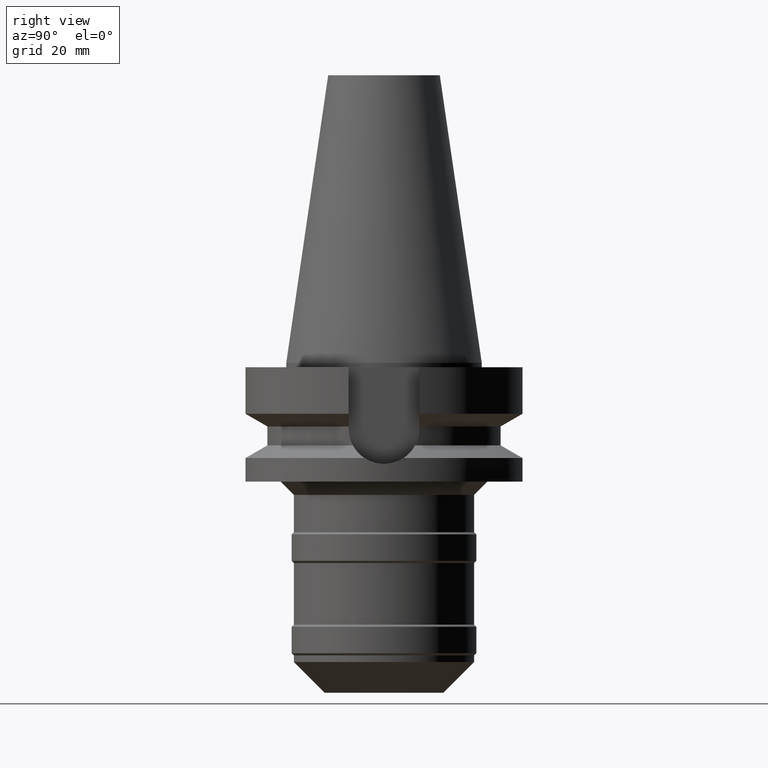
[diagram: clean part render]
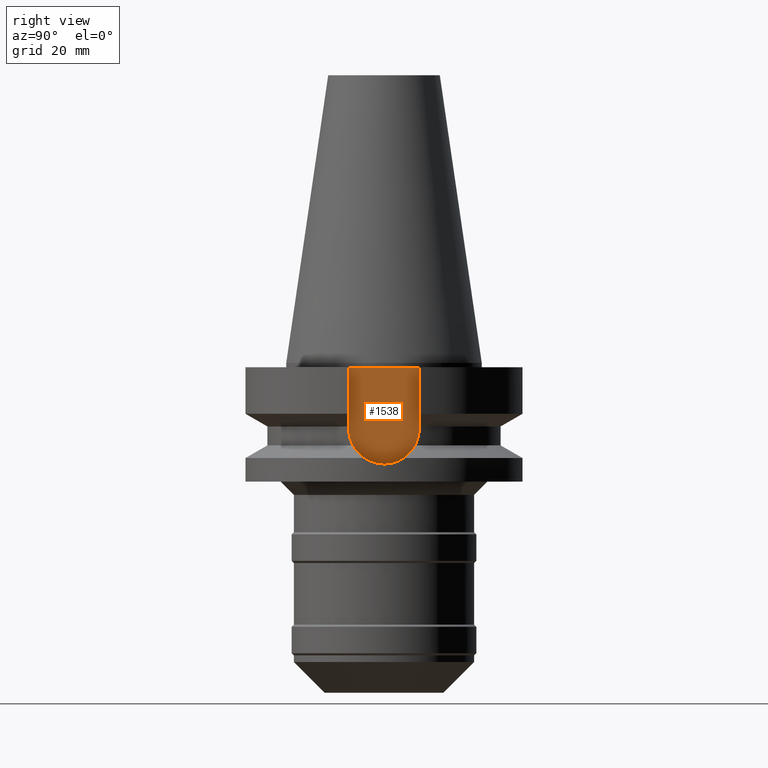
[diagram: same view with one face highlighted and labeled with its STEP entity id]
A machine part, right view. The second image highlights one B-rep face of the part: STEP entity #1538.
In plain terms, the highlighted planar face has unit normal (1, 0, 0).
Its self-contained STEP definition (entity closure, byte-faithful):
#124=DIRECTION('',(0.E0,-1.E0,0.E0));
#125=VECTOR('',#124,1.61E1);
#126=CARTESIAN_POINT('',(2.25E1,8.05E0,-1.E0));
#127=LINE('',#126,#125);
#307=DIRECTION('',(0.E0,0.E0,-1.E0));
#308=VECTOR('',#307,1.395E1);
#309=CARTESIAN_POINT('',(2.25E1,8.05E0,-1.E0));
#310=LINE('',#309,#308);
#314=CARTESIAN_POINT('',(2.25E1,0.E0,-1.495E1));
#315=DIRECTION('',(-1.E0,0.E0,0.E0));
#316=DIRECTION('',(0.E0,1.E0,0.E0));
#317=AXIS2_PLACEMENT_3D('',#314,#315,#316);
#322=CARTESIAN_POINT('',(2.25E1,0.E0,-1.495E1));
#323=DIRECTION('',(-1.E0,0.E0,0.E0));
#324=DIRECTION('',(0.E0,0.E0,-1.E0));
#325=AXIS2_PLACEMENT_3D('',#322,#323,#324);
#330=DIRECTION('',(0.E0,0.E0,1.E0));
#331=VECTOR('',#330,1.395E1);
#332=CARTESIAN_POINT('',(2.25E1,-8.05E0,-1.495E1));
#333=LINE('',#332,#331);
#1235=CARTESIAN_POINT('',(2.25E1,-8.05E0,-1.495E1));
#1236=VERTEX_POINT('',#1235);
#1237=CARTESIAN_POINT('',(2.25E1,0.E0,-2.3E1));
#1238=VERTEX_POINT('',#1237);
#1239=CARTESIAN_POINT('',(2.25E1,8.05E0,-1.495E1));
#1240=VERTEX_POINT('',#1239);
#1287=CARTESIAN_POINT('',(2.25E1,8.05E0,-1.E0));
#1288=VERTEX_POINT('',#1287);
#1289=CARTESIAN_POINT('',(2.25E1,-8.05E0,-1.E0));
#1290=VERTEX_POINT('',#1289);
#1523=CARTESIAN_POINT('',(2.25E1,0.E0,0.E0));
#1524=DIRECTION('',(1.E0,0.E0,0.E0));
#1525=DIRECTION('',(0.E0,0.E0,-1.E0));
#1526=AXIS2_PLACEMENT_3D('',#1523,#1524,#1525);
#1527=PLANE('',#1526);
#1528=ORIENTED_EDGE('',*,*,#1400,.F.);
#1530=ORIENTED_EDGE('',*,*,#1529,.T.);
#1532=ORIENTED_EDGE('',*,*,#1531,.T.);
#1534=ORIENTED_EDGE('',*,*,#1533,.T.);
#1535=ORIENTED_EDGE('',*,*,#1516,.T.);
#1536=EDGE_LOOP('',(#1528,#1530,#1532,#1534,#1535));
#1537=FACE_OUTER_BOUND('',#1536,.F.);
#318=CIRCLE('',#317,8.05E0);
#326=CIRCLE('',#325,8.05E0);
#1400=EDGE_CURVE('',#1288,#1290,#127,.T.);
#1516=EDGE_CURVE('',#1236,#1290,#333,.T.);
#1529=EDGE_CURVE('',#1288,#1240,#310,.T.);
#1531=EDGE_CURVE('',#1240,#1238,#318,.T.);
#1533=EDGE_CURVE('',#1238,#1236,#326,.T.);
#1538=ADVANCED_FACE('',(#1537),#1527,.T.);